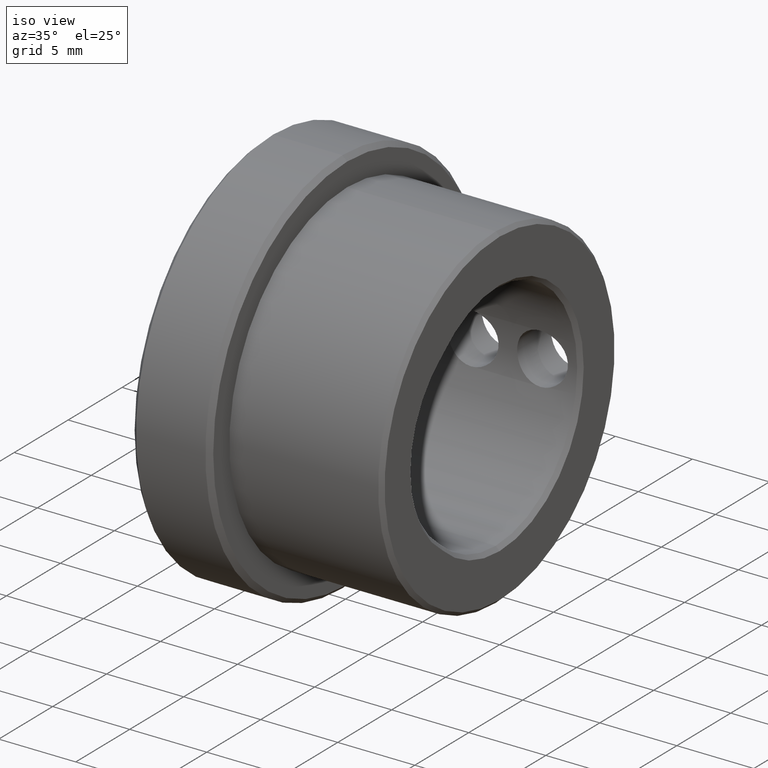
[diagram: clean part render]
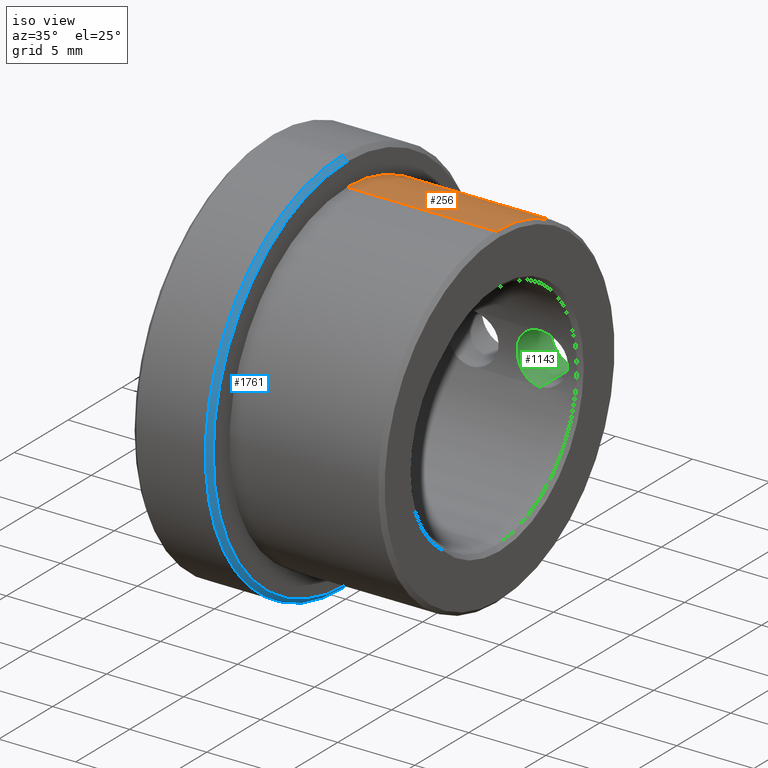
[diagram: same view with three faces highlighted in distinct colors, each labeled with its STEP entity id]
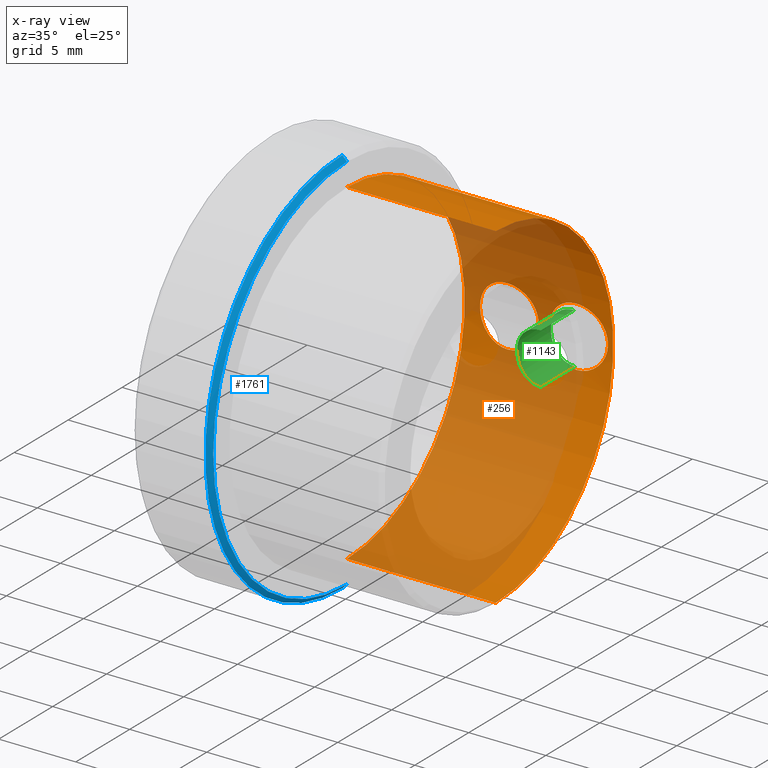
[diagram: x-ray of the same camera — body ghosted, the three highlighted faces saturated]
A machine part, iso view with three faces highlighted in distinct colors.
The next image is the same camera in x-ray (body ghosted, the three faces saturated) — at least one of them is partly hidden behind the body in this view.
Their STEP definitions:

[orange] entity #256 — the highlighted cylindrical surface (partial cylindrical patch) has radius 10.9 mm, axis along (1, -0, -0).
#38 = CARTESIAN_POINT ( 'NONE',  ( 13.93448111680275800, 10.82466434952320400, -1.282526396162563000 ) ) ;
#49 = EDGE_LOOP ( 'NONE', ( #332, #2009 ) ) ;
#52 = CARTESIAN_POINT ( 'NONE',  ( 14.30598066297754800, 10.88266823317304400, -0.6255724871592224200 ) ) ;
#76 = CARTESIAN_POINT ( 'NONE',  ( 13.45393359520261500, 10.76918334947350300, 1.685153254931426300 ) ) ;
#84 = B_SPLINE_CURVE_WITH_KNOTS ( 'NONE', 3,
 ( #572, #2705, #858, #4007, #2421, #3373, #2115, #2448, #3387, #2747, #545, #3995, #1835, #887, #3038, #1821, #3679, #1184, #4022, #1503, #3068, #589, #1199, #1518, #4038, #2144, #2761, #899, #1215, #1531 ),
 .UNSPECIFIED., .F., .F.,
 ( 4, 2, 2, 2, 2, 2, 2, 2, 2, 2, 2, 2, 2, 2, 4 ),
 ( 0.0000000000000000000, 0.03125000000000002100, 0.06250000000000004200, 0.09375000000000005600, 0.1250000000000000800, 0.1875000000000001100, 0.2187500000000001400, 0.2500000000000001700, 0.2812500000000001700, 0.3125000000000002200, 0.3750000000000001100, 0.4062500000000001100, 0.4375000000000000600, 0.4687500000000000600, 0.5000000000000000000 ),
 .UNSPECIFIED. ) ;
#95 = DIRECTION ( 'NONE',  ( -1.000000000000000000, -0.0000000000000000000, -0.0000000000000000000 ) ) ;
#115 = CARTESIAN_POINT ( 'NONE',  ( 6.193772596453445800, 10.88271048660169200, -0.6249947740214681900 ) ) ;
#127 = CARTESIAN_POINT ( 'NONE',  ( 7.044712123766864000, 10.76930558898333200, -1.684385955725953500 ) ) ;
#140 = EDGE_CURVE ( 'NONE', #485, #638, #1802, .T. ) ;
#141 = CARTESIAN_POINT ( 'NONE',  ( 14.74999999999999300, 0.0000000000000000000, -10.90000000000000000 ) ) ;
#157 = CARTESIAN_POINT ( 'NONE',  ( 8.000101108571696400, 10.72561353453819400, -1.941961458868615200 ) ) ;
#232 = CARTESIAN_POINT ( 'NONE',  ( 9.651400526757187800, 10.85695364114914900, -0.9735368024735693300 ) ) ;
#256 = ADVANCED_FACE ( 'NONE', ( #3972, #3865, #422 ), #321, .T. ) ;
#259 = CARTESIAN_POINT ( 'NONE',  ( 9.710844435426862400, 10.86665203325169000, -0.8600479046255241600 ) ) ;
#321 = CYLINDRICAL_SURFACE ( 'NONE', #906, 10.90000000000000000 ) ;
#332 = ORIENTED_EDGE ( 'NONE', *, *, #3018, .T. ) ;
#346 = CARTESIAN_POINT ( 'NONE',  ( 14.21012213869053300, 10.86653236899807800, 0.8615281603568127900 ) ) ;
#365 = CARTESIAN_POINT ( 'NONE',  ( 12.49999999999999600, 10.72561353404198700, 1.941961461609211100 ) ) ;
#371 = AXIS2_PLACEMENT_3D ( 'NONE', #3557, #95, #2288 ) ;
#387 = CARTESIAN_POINT ( 'NONE',  ( 12.75179249581034400, 10.72797197581001200, -1.929055660034202100 ) ) ;
#422 = FACE_OUTER_BOUND ( 'NONE', #2964, .T. ) ;
#426 = CARTESIAN_POINT ( 'NONE',  ( 6.477948714943781100, 10.83601141925078400, -1.193185982978607300 ) ) ;
#443 = CARTESIAN_POINT ( 'NONE',  ( 7.503600150272564700, 10.73683541246526100, -1.879099785914801800 ) ) ;
#483 = CARTESIAN_POINT ( 'NONE',  ( 6.741544462586246800, 10.80184864489955200, 1.462249360658535200 ) ) ;
#485 = VERTEX_POINT ( 'NONE', #673 ) ;
#541 = CARTESIAN_POINT ( 'NONE',  ( 8.000101108571696400, 10.72561353453819400, -1.941961458868615200 ) ) ;
#545 = CARTESIAN_POINT ( 'NONE',  ( 10.83744355992933500, 10.85852818580780600, 0.9784995351024758900 ) ) ;
#553 = CARTESIAN_POINT ( 'NONE',  ( 9.852916843954709200, 10.89056611982990900, 0.5104856315000946300 ) ) ;
#569 = CARTESIAN_POINT ( 'NONE',  ( 8.497691144589667900, 10.73503655981844900, 1.891795413220366500 ) ) ;
#572 = CARTESIAN_POINT ( 'NONE',  ( 12.49999999999999600, 10.72561353404198700, 1.941961461609211100 ) ) ;
#585 = CARTESIAN_POINT ( 'NONE',  ( 9.805980663011178300, 10.88266823317870500, -0.6255724870763034200 ) ) ;
#589 = CARTESIAN_POINT ( 'NONE',  ( 11.24211233671282500, 10.80177435215223400, -1.462832838095498500 ) ) ;
#638 = VERTEX_POINT ( 'NONE', #141 ) ;
#667 = CARTESIAN_POINT ( 'NONE',  ( 12.62502061953159900, 10.72560827961190500, -1.941990482260556000 ) ) ;
#673 = CARTESIAN_POINT ( 'NONE',  ( 5.100000000000000500, 0.0000000000000000000, -10.90000000000000000 ) ) ;
#689 = CARTESIAN_POINT ( 'NONE',  ( 7.155649832996753700, 10.75952842691558700, 1.744985260208162600 ) ) ;
#696 = CARTESIAN_POINT ( 'NONE',  ( 14.15140052672097900, 10.85695364114228700, -0.9735368025425276100 ) ) ;
#739 = CARTESIAN_POINT ( 'NONE',  ( 12.50010110857169300, 10.72561353453819400, -1.941961458868615200 ) ) ;
#783 = ORIENTED_EDGE ( 'NONE', *, *, #140, .F. ) ;
#784 = DIRECTION ( 'NONE',  ( 1.000000000000000000, -0.0000000000000000000, -0.0000000000000000000 ) ) ;
#791 = CARTESIAN_POINT ( 'NONE',  ( 7.385491295857088200, 10.74329118066961400, -1.842314230194242100 ) ) ;
#800 = AXIS2_PLACEMENT_3D ( 'NONE', #1341, #1652, #3246 ) ;
#855 = CARTESIAN_POINT ( 'NONE',  ( 9.170082780656542800, 10.79038935564738100, -1.552554830066023500 ) ) ;
#858 = CARTESIAN_POINT ( 'NONE',  ( 12.25036045416437200, 10.72791660603273600, 1.929362488933973300 ) ) ;
#887 = CARTESIAN_POINT ( 'NONE',  ( 10.60917457193539800, 10.89774060948130000, 0.2546511052142029800 ) ) ;
#896 = CARTESIAN_POINT ( 'NONE',  ( 9.512341993594452200, 10.83583649952344500, 1.185700583548599000 ) ) ;
#899 = CARTESIAN_POINT ( 'NONE',  ( 12.24959441490201700, 10.72792283424600200, -1.929332097451470100 ) ) ;
#906 = AXIS2_PLACEMENT_3D ( 'NONE', #2511, #1572, #2522 ) ;
#921 = VERTEX_POINT ( 'NONE', #739 ) ;
#959 = CIRCLE ( 'NONE', #800, 10.90000000000000000 ) ;
#968 = VECTOR ( 'NONE', #1892, 1000.000000000000000 ) ;
#996 = CARTESIAN_POINT ( 'NONE',  ( 13.34532259357969900, 10.75959592823431200, 1.744583164441473500 ) ) ;
#1056 = CARTESIAN_POINT ( 'NONE',  ( 6.109174571935401600, 10.89774060948130000, 0.2546511052142029800 ) ) ;
#1068 = CARTESIAN_POINT ( 'NONE',  ( 6.337529075654760600, 10.85850691301961900, -0.9792096970943654500 ) ) ;
#1181 = CARTESIAN_POINT ( 'NONE',  ( 9.710122138650529400, 10.86653236899285200, 0.8615281604331764800 ) ) ;
#1184 = CARTESIAN_POINT ( 'NONE',  ( 10.65784218192463600, 10.88905812384126300, -0.5038760871649956600 ) ) ;
#1195 = CARTESIAN_POINT ( 'NONE',  ( 8.125020619531612800, 10.72560827961190500, -1.941990482260556300 ) ) ;
#1199 = CARTESIAN_POINT ( 'NONE',  ( 11.33794830668963100, 10.79044939035353000, -1.543146419163497200 ) ) ;
#1212 = CARTESIAN_POINT ( 'NONE',  ( 8.251792495810347500, 10.72797197581001200, -1.929055660034202100 ) ) ;
#1215 = CARTESIAN_POINT ( 'NONE',  ( 12.37518159761178700, 10.72561878946448400, -1.941932435476674300 ) ) ;
#1301 = CIRCLE ( 'NONE', #371, 10.90000000000000000 ) ;
#1314 = CARTESIAN_POINT ( 'NONE',  ( 13.67008278079414300, 10.79038935566830100, -1.552554829901219500 ) ) ;
#1341 = CARTESIAN_POINT ( 'NONE',  ( 14.74999999999999300, 0.0000000000000000000, 0.0000000000000000000 ) ) ;
#1351 = CARTESIAN_POINT ( 'NONE',  ( 8.000000000000000000, 10.72561353404198700, 1.941961461609210900 ) ) ;
#1405 = CARTESIAN_POINT ( 'NONE',  ( 6.837948306725575500, 10.79044939034985300, -1.543146419188051300 ) ) ;
#1485 = CARTESIAN_POINT ( 'NONE',  ( 8.960914588630442900, 10.76776294763853800, -1.695625680491220400 ) ) ;
#1500 = CARTESIAN_POINT ( 'NONE',  ( 9.160189116540692600, 10.79024293599155900, 1.544574015535566900 ) ) ;
#1503 = CARTESIAN_POINT ( 'NONE',  ( 10.83752907551337000, 10.85850691304040600, -0.9792096967901310300 ) ) ;
#1518 = CARTESIAN_POINT ( 'NONE',  ( 11.54471212380279800, 10.76930558897965200, -1.684385955750501900 ) ) ;
#1528 = CARTESIAN_POINT ( 'NONE',  ( 8.953933595202620700, 10.76918334947350300, 1.685153254931426300 ) ) ;
#1531 = CARTESIAN_POINT ( 'NONE',  ( 12.50010110857169300, 10.72561353453819400, -1.941961458868615200 ) ) ;
#1572 = DIRECTION ( 'NONE',  ( 1.000000000000000000, -0.0000000000000000000, -0.0000000000000000000 ) ) ;
#1600 = CARTESIAN_POINT ( 'NONE',  ( 12.99539842339425600, 10.73680023908561900, -1.879297496205946100 ) ) ;
#1614 = CARTESIAN_POINT ( 'NONE',  ( 14.40320218541351100, 10.90001193329718600, -0.1257787172661864500 ) ) ;
#1652 = DIRECTION ( 'NONE',  ( -1.000000000000000000, 0.0000000000000000000, 0.0000000000000000000 ) ) ;
#1659 = ORIENTED_EDGE ( 'NONE', *, *, #2185, .T. ) ;
#1676 = CARTESIAN_POINT ( 'NONE',  ( 6.838704798634724500, 10.79035844170986100, 1.543792428521620000 ) ) ;
#1703 = CARTESIAN_POINT ( 'NONE',  ( 6.194580956912480100, 10.88257097720220700, 0.6272342877117482700 ) ) ;
#1802 = LINE ( 'NONE', #3136, #968 ) ;
#1821 = CARTESIAN_POINT ( 'NONE',  ( 10.59679411175982400, 10.90001145644080800, -0.1265740717707455900 ) ) ;
#1835 = CARTESIAN_POINT ( 'NONE',  ( 10.65791933757679100, 10.88904490952195700, 0.5042802150974790000 ) ) ;
#1858 = EDGE_LOOP ( 'NONE', ( #2151, #1659 ) ) ;
#1865 = ORIENTED_EDGE ( 'NONE', *, *, #2602, .T. ) ;
#1892 = DIRECTION ( 'NONE',  ( 1.000000000000000000, -0.0000000000000000000, -0.0000000000000000000 ) ) ;
#1913 = CARTESIAN_POINT ( 'NONE',  ( 14.34197298697552500, 10.88902618908470300, -0.5048100946018927400 ) ) ;
#1920 = B_SPLINE_CURVE_WITH_KNOTS ( 'NONE', 3,
 ( #4003, #1195, #1212, #4034, #2124, #1485, #855, #3384, #2141, #232, #259, #585, #2744, #3050, #2731, #2096, #553, #1181, #2758, #896, #3369, #3398, #1500, #1528, #3689, #569, #3719, #3342 ),
 .UNSPECIFIED., .F., .F.,
 ( 4, 2, 2, 2, 2, 2, 2, 2, 2, 2, 2, 2, 2, 4 ),
 ( 0.5000000000000000000, 0.5312500000000000000, 0.5625000000000000000, 0.6250000000000000000, 0.6562500000000000000, 0.6875000000000000000, 0.7187500000000000000, 0.7500000000000000000, 0.8124999999999998900, 0.8437499999999997800, 0.8749999999999997800, 0.9062499999999997800, 0.9374999999999997800, 1.000000000000000000 ),
 .UNSPECIFIED. ) ;
#1974 = CARTESIAN_POINT ( 'NONE',  ( 7.506253977036834600, 10.73671803567281400, 1.879765980689221500 ) ) ;
#1990 = CARTESIAN_POINT ( 'NONE',  ( 6.742112336729970700, 10.80177435215001000, -1.462832838112997100 ) ) ;
#2009 = ORIENTED_EDGE ( 'NONE', *, *, #2400, .T. ) ;
#2014 = CARTESIAN_POINT ( 'NONE',  ( -36.28023472911937800, 1.334865011070615000E-015, 10.90000000000000000 ) ) ;
#2019 = CARTESIAN_POINT ( 'NONE',  ( 7.749594414902022200, 10.72792283424599800, -1.929332097451469600 ) ) ;
#2096 = CARTESIAN_POINT ( 'NONE',  ( 9.903014588702276900, 10.89997598743169000, 0.2546472072838175700 ) ) ;
#2115 = CARTESIAN_POINT ( 'NONE',  ( 11.54648347481930800, 10.76913820465360800, 1.685465126310825100 ) ) ;
#2124 = CARTESIAN_POINT ( 'NONE',  ( 8.613915280436183200, 10.74324717565823700, -1.842581466022870500 ) ) ;
#2141 = CARTESIAN_POINT ( 'NONE',  ( 9.513369326800525300, 10.83598750249444000, -1.184310397495733200 ) ) ;
#2144 = CARTESIAN_POINT ( 'NONE',  ( 11.88549129586587800, 10.74329118066962100, -1.842314230194194800 ) ) ;
#2146 = VERTEX_POINT ( 'NONE', #541 ) ;
#2151 = ORIENTED_EDGE ( 'NONE', *, *, #2833, .T. ) ;
#2185 = EDGE_CURVE ( 'NONE', #2146, #3666, #1920, .T. ) ;
#2217 = CARTESIAN_POINT ( 'NONE',  ( 14.35291684387469300, 10.89056611981945400, 0.5104856316528213500 ) ) ;
#2230 = CARTESIAN_POINT ( 'NONE',  ( 14.21084443546050300, 10.86665203325734900, -0.8600479045426106000 ) ) ;
#2244 = CARTESIAN_POINT ( 'NONE',  ( 13.75763208653428100, 10.80174303721701500, 1.463062796948517500 ) ) ;
#2260 = CARTESIAN_POINT ( 'NONE',  ( 14.39092420885876100, 10.89775774311846100, -0.2541667769125990400 ) ) ;
#2266 = B_SPLINE_CURVE_WITH_KNOTS ( 'NONE', 3,
 ( #2582, #667, #387, #1600, #3458, #3781, #1314, #38, #2859, #696, #2230, #52, #1913, #2260, #1614, #3515, #2217, #346, #3155, #2545, #3142, #2244, #2834, #76, #996, #2569, #3182, #2844 ),
 .UNSPECIFIED., .F., .F.,
 ( 4, 2, 2, 2, 2, 2, 2, 2, 2, 2, 2, 2, 2, 4 ),
 ( 0.5000000000000000000, 0.5312500000000000000, 0.5625000000000001100, 0.6250000000000002200, 0.6562500000000002200, 0.6875000000000002200, 0.7187500000000003300, 0.7500000000000003300, 0.8125000000000004400, 0.8437500000000003300, 0.8750000000000002200, 0.9062500000000002200, 0.9375000000000001100, 1.000000000000000000 ),
 .UNSPECIFIED. ) ;
#2288 = DIRECTION ( 'NONE',  ( 0.0000000000000000000, 0.0000000000000000000, -1.000000000000000000 ) ) ;
#2312 = CARTESIAN_POINT ( 'NONE',  ( 6.479011411970811100, 10.83587230144245000, 1.194278370854390700 ) ) ;
#2323 = CARTESIAN_POINT ( 'NONE',  ( 6.337443559879814000, 10.85852818581914800, 0.9784995349367351400 ) ) ;
#2350 = CARTESIAN_POINT ( 'NONE',  ( 6.109281222511431700, 10.89772213330346600, -0.2552062712710263000 ) ) ;
#2400 = EDGE_CURVE ( 'NONE', #921, #2781, #2266, .T. ) ;
#2421 = CARTESIAN_POINT ( 'NONE',  ( 11.88503277407640700, 10.74332065112389500, 1.842141936736017400 ) ) ;
#2448 = CARTESIAN_POINT ( 'NONE',  ( 11.33870479863472400, 10.79035844170986100, 1.543792428521620500 ) ) ;
#2475 = EDGE_CURVE ( 'NONE', #3123, #485, #1301, .T. ) ;
#2511 = CARTESIAN_POINT ( 'NONE',  ( -36.28023472911937800, 0.0000000000000000000, 0.0000000000000000000 ) ) ;
#2522 = DIRECTION ( 'NONE',  ( 0.0000000000000000000, 0.0000000000000000000, -1.000000000000000000 ) ) ;
#2545 = CARTESIAN_POINT ( 'NONE',  ( 14.01234199360547300, 10.83583649952481300, 1.185700583534885500 ) ) ;
#2569 = CARTESIAN_POINT ( 'NONE',  ( 12.99769114463844000, 10.73503655982189300, 1.891795413199714100 ) ) ;
#2582 = CARTESIAN_POINT ( 'NONE',  ( 12.50010110857169300, 10.72561353453819400, -1.941961458868615200 ) ) ;
#2602 = EDGE_CURVE ( 'NONE', #3123, #3522, #2806, .T. ) ;
#2642 = CARTESIAN_POINT ( 'NONE',  ( 7.155930538377936600, 10.75950567435205200, -1.745126000899553300 ) ) ;
#2653 = CARTESIAN_POINT ( 'NONE',  ( 14.74999999999999300, 1.334865011070615000E-015, 10.90000000000000000 ) ) ;
#2672 = EDGE_CURVE ( 'NONE', #3522, #638, #959, .T. ) ;
#2705 = CARTESIAN_POINT ( 'NONE',  ( 12.37477430035711900, 10.72562006695878300, 1.941925379770204300 ) ) ;
#2731 = CARTESIAN_POINT ( 'NONE',  ( 9.903202185404502700, 10.90001193329717400, -0.1257787170807642400 ) ) ;
#2744 = CARTESIAN_POINT ( 'NONE',  ( 9.841972986975529000, 10.88902618908470300, -0.5048100946018904100 ) ) ;
#2747 = CARTESIAN_POINT ( 'NONE',  ( 10.97901141197072400, 10.83587230144246200, 1.194278370854282800 ) ) ;
#2758 = CARTESIAN_POINT ( 'NONE',  ( 9.650740870520355200, 10.85684845384884600, 0.9747205591306006300 ) ) ;
#2761 = CARTESIAN_POINT ( 'NONE',  ( 12.00360015027256100, 10.73683541246526300, -1.879099785914801800 ) ) ;
#2781 = VERTEX_POINT ( 'NONE', #365 ) ;
#2798 = B_SPLINE_CURVE_WITH_KNOTS ( 'NONE', 3,
 ( #1351, #2852, #3534, #1974, #3175, #689, #3189, #1676, #483, #2312, #2323, #1703, #2963, #1056, #3590, #3874, #2350, #3548, #115, #1068, #426, #1990, #1405, #127, #2642, #791, #443, #2019, #3563, #157 ),
 .UNSPECIFIED., .F., .F.,
 ( 4, 2, 2, 2, 2, 2, 2, 2, 2, 2, 2, 2, 2, 2, 4 ),
 ( 0.0000000000000000000, 0.03124999999999995800, 0.06249999999999991700, 0.09374999999999987500, 0.1249999999999998300, 0.1874999999999997500, 0.2187499999999997200, 0.2499999999999996700, 0.2812499999999996100, 0.3124999999999995600, 0.3749999999999996700, 0.4062499999999997200, 0.4374999999999997800, 0.4687499999999998900, 0.5000000000000000000 ),
 .UNSPECIFIED. ) ;
#2806 = LINE ( 'NONE', #2014, #3798 ) ;
#2833 = EDGE_CURVE ( 'NONE', #3666, #2146, #2798, .T. ) ;
#2834 = CARTESIAN_POINT ( 'NONE',  ( 13.66018911654068700, 10.79024293599155700, 1.544574015535566700 ) ) ;
#2844 = CARTESIAN_POINT ( 'NONE',  ( 12.49999999999999600, 10.72561353404198700, 1.941961461609211100 ) ) ;
#2852 = CARTESIAN_POINT ( 'NONE',  ( 7.874774300357123600, 10.72562006695878300, 1.941925379770203900 ) ) ;
#2859 = CARTESIAN_POINT ( 'NONE',  ( 14.01336932683672000, 10.83598750250129900, -1.184310397426783900 ) ) ;
#2886 = CARTESIAN_POINT ( 'NONE',  ( 5.100000000000000500, 1.334865011070615000E-015, 10.90000000000000000 ) ) ;
#2963 = CARTESIAN_POINT ( 'NONE',  ( 6.157919337576792900, 10.88904490952195700, 0.5042802150974788900 ) ) ;
#2964 = EDGE_LOOP ( 'NONE', ( #3216, #1865, #3468, #783 ) ) ;
#3018 = EDGE_CURVE ( 'NONE', #2781, #921, #84, .T. ) ;
#3038 = CARTESIAN_POINT ( 'NONE',  ( 10.59692653399730000, 10.89998845495159500, 0.1285395974300352400 ) ) ;
#3050 = CARTESIAN_POINT ( 'NONE',  ( 9.890924208858766800, 10.89775774311846000, -0.2541667769125966500 ) ) ;
#3068 = CARTESIAN_POINT ( 'NONE',  ( 10.97794871497806200, 10.83601141924633800, -1.193185983013604900 ) ) ;
#3123 = VERTEX_POINT ( 'NONE', #2886 ) ;
#3136 = CARTESIAN_POINT ( 'NONE',  ( -36.28023472911937800, 0.0000000000000000000, -10.90000000000000000 ) ) ;
#3142 = CARTESIAN_POINT ( 'NONE',  ( 13.93376168899850100, 10.82456679715631000, 1.283339021374435300 ) ) ;
#3155 = CARTESIAN_POINT ( 'NONE',  ( 14.15074087050933500, 10.85684845384748000, 0.9747205591443097700 ) ) ;
#3175 = CARTESIAN_POINT ( 'NONE',  ( 7.385032774107294500, 10.74332065112108500, 1.842141936752865300 ) ) ;
#3182 = CARTESIAN_POINT ( 'NONE',  ( 12.74979554985913300, 10.72560050242349000, 1.942033436314404900 ) ) ;
#3189 = CARTESIAN_POINT ( 'NONE',  ( 7.046483474819305000, 10.76913820465360800, 1.685465126310825100 ) ) ;
#3216 = ORIENTED_EDGE ( 'NONE', *, *, #2475, .F. ) ;
#3246 = DIRECTION ( 'NONE',  ( 0.0000000000000000000, 0.0000000000000000000, -1.000000000000000000 ) ) ;
#3342 = CARTESIAN_POINT ( 'NONE',  ( 8.000000000000000000, 10.72561353404198700, 1.941961461609210900 ) ) ;
#3369 = CARTESIAN_POINT ( 'NONE',  ( 9.433761688998501400, 10.82456679715631000, 1.283339021374435300 ) ) ;
#3373 = CARTESIAN_POINT ( 'NONE',  ( 11.65564983302765100, 10.75952842691277700, 1.744985260225010900 ) ) ;
#3384 = CARTESIAN_POINT ( 'NONE',  ( 9.434481116871570100, 10.82466434953366300, -1.282526396080157600 ) ) ;
#3387 = CARTESIAN_POINT ( 'NONE',  ( 11.24154446258629700, 10.80184864489954500, 1.462249360658589600 ) ) ;
#3398 = CARTESIAN_POINT ( 'NONE',  ( 9.257632086534286500, 10.80174303721701700, 1.463062796948517700 ) ) ;
#3458 = CARTESIAN_POINT ( 'NONE',  ( 13.11391528044200600, 10.74324717565876800, -1.842581466019692900 ) ) ;
#3468 = ORIENTED_EDGE ( 'NONE', *, *, #2672, .T. ) ;
#3515 = CARTESIAN_POINT ( 'NONE',  ( 14.40301458868424500, 10.89997598743165100, 0.2546472076546550900 ) ) ;
#3522 = VERTEX_POINT ( 'NONE', #2653 ) ;
#3534 = CARTESIAN_POINT ( 'NONE',  ( 7.750360454164381400, 10.72791660603273700, 1.929362488933973600 ) ) ;
#3548 = CARTESIAN_POINT ( 'NONE',  ( 6.157842181898661100, 10.88905812384430800, -0.5038760870775428300 ) ) ;
#3557 = CARTESIAN_POINT ( 'NONE',  ( 5.100000000000000500, 0.0000000000000000000, 0.0000000000000000000 ) ) ;
#3563 = CARTESIAN_POINT ( 'NONE',  ( 7.875181597611778300, 10.72561878946448000, -1.941932435476674300 ) ) ;
#3590 = CARTESIAN_POINT ( 'NONE',  ( 6.096926533997295100, 10.89998845495159500, 0.1285395974299472500 ) ) ;
#3666 = VERTEX_POINT ( 'NONE', #3950 ) ;
#3679 = CARTESIAN_POINT ( 'NONE',  ( 10.60928122248545000, 10.89772213330651400, -0.2552062711835692600 ) ) ;
#3689 = CARTESIAN_POINT ( 'NONE',  ( 8.845322593604086200, 10.75959592823603300, 1.744583164431147800 ) ) ;
#3719 = CARTESIAN_POINT ( 'NONE',  ( 8.249795549859065600, 10.72560050242349500, 1.942033436314406300 ) ) ;
#3781 = CARTESIAN_POINT ( 'NONE',  ( 13.46091458861878100, 10.76776294763747700, -1.695625680497582400 ) ) ;
#3798 = VECTOR ( 'NONE', #784, 1000.000000000000000 ) ;
#3865 = FACE_BOUND ( 'NONE', #1858, .T. ) ;
#3874 = CARTESIAN_POINT ( 'NONE',  ( 6.096794111759823700, 10.90001145644081000, -0.1265740717706530000 ) ) ;
#3950 = CARTESIAN_POINT ( 'NONE',  ( 8.000000000000000000, 10.72561353404198700, 1.941961461609210900 ) ) ;
#3972 = FACE_BOUND ( 'NONE', #49, .T. ) ;
#3995 = CARTESIAN_POINT ( 'NONE',  ( 10.69458095688772300, 10.88257097720788000, 0.6272342876288774500 ) ) ;
#4003 = CARTESIAN_POINT ( 'NONE',  ( 8.000101108571696400, 10.72561353453819400, -1.941961458868615200 ) ) ;
#4007 = CARTESIAN_POINT ( 'NONE',  ( 12.00625397703683500, 10.73671803567281600, 1.879765980689222000 ) ) ;
#4022 = CARTESIAN_POINT ( 'NONE',  ( 10.69377259652413800, 10.88271048659130200, -0.6249947741735847300 ) ) ;
#4034 = CARTESIAN_POINT ( 'NONE',  ( 8.495398423394265200, 10.73680023908562500, -1.879297496205946300 ) ) ;
#4038 = CARTESIAN_POINT ( 'NONE',  ( 11.65593053836915000, 10.75950567435204700, -1.745126000899601900 ) ) ;

[blue] entity #1761 — the highlighted conical surface has half-angle 45 deg.
#56 = DIRECTION ( 'NONE',  ( 1.000000000000000000, 0.0000000000000000000, 0.0000000000000000000 ) ) ;
#87 = ORIENTED_EDGE ( 'NONE', *, *, #3738, .T. ) ;
#199 = CARTESIAN_POINT ( 'NONE',  ( 5.099999999999999600, 0.0000000000000000000, 12.40000000000000400 ) ) ;
#507 = EDGE_CURVE ( 'NONE', #2049, #2345, #2810, .T. ) ;
#803 = CARTESIAN_POINT ( 'NONE',  ( 4.800000000000002500, 0.0000000000000000000, 0.0000000000000000000 ) ) ;
#826 = EDGE_CURVE ( 'NONE', #2345, #2349, #3756, .T. ) ;
#827 = CARTESIAN_POINT ( 'NONE',  ( 5.100000000000000500, 1.518562030942718400E-015, -12.40000000000000400 ) ) ;
#842 = DIRECTION ( 'NONE',  ( -0.7071067811865495700, 0.0000000000000000000, 0.7071067811865455700 ) ) ;
#911 = CONICAL_SURFACE ( 'NONE', #1566, 12.40000000000000400, 0.7853981633974456100 ) ;
#935 = VERTEX_POINT ( 'NONE', #3635 ) ;
#1043 = CARTESIAN_POINT ( 'NONE',  ( 5.100000000000000500, 0.0000000000000000000, 0.0000000000000000000 ) ) ;
#1190 = EDGE_CURVE ( 'NONE', #2349, #935, #3006, .T. ) ;
#1349 = LINE ( 'NONE', #2981, #2280 ) ;
#1566 = AXIS2_PLACEMENT_3D ( 'NONE', #1043, #3271, #3936 ) ;
#1714 = ORIENTED_EDGE ( 'NONE', *, *, #507, .F. ) ;
#1719 = DIRECTION ( 'NONE',  ( 0.0000000000000000000, 0.0000000000000000000, -1.000000000000000000 ) ) ;
#1761 = ADVANCED_FACE ( 'NONE', ( #2478 ), #911, .T. ) ;
#1816 = DIRECTION ( 'NONE',  ( -0.7071067811865495700, 8.659560562354909400E-017, -0.7071067811865455700 ) ) ;
#1890 = VECTOR ( 'NONE', #1816, 1000.000000000000100 ) ;
#1894 = ORIENTED_EDGE ( 'NONE', *, *, #1190, .F. ) ;
#1928 = CARTESIAN_POINT ( 'NONE',  ( 5.099999999999999600, 1.536931732929928400E-015, -12.40000000000000400 ) ) ;
#1955 = CARTESIAN_POINT ( 'NONE',  ( 4.800000000000002500, 1.555301434917138400E-015, -12.69999999999999900 ) ) ;
#1962 = DIRECTION ( 'NONE',  ( 0.0000000000000000000, 0.0000000000000000000, -1.000000000000000000 ) ) ;
#2004 = ORIENTED_EDGE ( 'NONE', *, *, #826, .F. ) ;
#2049 = VERTEX_POINT ( 'NONE', #199 ) ;
#2063 = AXIS2_PLACEMENT_3D ( 'NONE', #803, #3026, #1719 ) ;
#2280 = VECTOR ( 'NONE', #842, 1000.000000000000100 ) ;
#2345 = VERTEX_POINT ( 'NONE', #1928 ) ;
#2349 = VERTEX_POINT ( 'NONE', #1955 ) ;
#2478 = FACE_OUTER_BOUND ( 'NONE', #3070, .T. ) ;
#2590 = CARTESIAN_POINT ( 'NONE',  ( 5.099999999999999600, 0.0000000000000000000, 0.0000000000000000000 ) ) ;
#2810 = CIRCLE ( 'NONE', #4070, 12.40000000000000400 ) ;
#2981 = CARTESIAN_POINT ( 'NONE',  ( 5.100000000000000500, 0.0000000000000000000, 12.40000000000000400 ) ) ;
#3006 = CIRCLE ( 'NONE', #2063, 12.69999999999999900 ) ;
#3026 = DIRECTION ( 'NONE',  ( -1.000000000000000000, 0.0000000000000000000, 0.0000000000000000000 ) ) ;
#3070 = EDGE_LOOP ( 'NONE', ( #2004, #1714, #87, #1894 ) ) ;
#3271 = DIRECTION ( 'NONE',  ( -1.000000000000000000, 0.0000000000000000000, 0.0000000000000000000 ) ) ;
#3635 = CARTESIAN_POINT ( 'NONE',  ( 4.800000000000002500, 0.0000000000000000000, 12.69999999999999900 ) ) ;
#3738 = EDGE_CURVE ( 'NONE', #2049, #935, #1349, .T. ) ;
#3756 = LINE ( 'NONE', #827, #1890 ) ;
#3936 = DIRECTION ( 'NONE',  ( 0.0000000000000000000, 0.0000000000000000000, 1.000000000000000000 ) ) ;
#4070 = AXIS2_PLACEMENT_3D ( 'NONE', #2590, #56, #1962 ) ;

[green] entity #1143 — the highlighted cylindrical surface (edge-blend (fillet) strip) has radius 1.65 mm, axis along (-0, 1, -0).
#21 = CARTESIAN_POINT ( 'NONE',  ( 11.77023163480079000, 10.54483857506244800, -1.479908716548356400 ) ) ;
#33 = CARTESIAN_POINT ( 'NONE',  ( 11.58704323317240500, 10.56381202856992200, -1.374425490307099200 ) ) ;
#48 = CARTESIAN_POINT ( 'NONE',  ( 11.16412201635084900, 10.62352710810087700, -0.9685609291798427100 ) ) ;
#72 = CARTESIAN_POINT ( 'NONE',  ( 11.97146448605996300, 10.52882664096324900, -1.563300351270990900 ) ) ;
#78 = FACE_OUTER_BOUND ( 'NONE', #1365, .T. ) ;
#89 = CARTESIAN_POINT ( 'NONE',  ( 11.23681912163993200, 10.61168697103268800, 1.061706327356664500 ) ) ;
#103 = CARTESIAN_POINT ( 'NONE',  ( 11.11297779817430800, 10.63224766810830100, 0.8937111035530573800 ) ) ;
#114 = CARTESIAN_POINT ( 'NONE',  ( 11.67222748381330200, 7.413318146423143200, -1.431410878810329000 ) ) ;
#117 = CARTESIAN_POINT ( 'NONE',  ( 11.05733391858074000, 10.64209231824611600, -0.8008652195843621900 ) ) ;
#130 = CARTESIAN_POINT ( 'NONE',  ( 11.38243626908430500, 10.58992343301095600, 1.214198376902997600 ) ) ;
#144 = CARTESIAN_POINT ( 'NONE',  ( 10.86035054119211900, 10.67995173893578100, -0.2147307508206558700 ) ) ;
#150 = VERTEX_POINT ( 'NONE', #613 ) ;
#156 = CARTESIAN_POINT ( 'NONE',  ( 10.84995346425963400, 7.550010170061572300, 0.1081851496566004600 ) ) ;
#159 = CARTESIAN_POINT ( 'NONE',  ( 12.07548202011074400, 10.52256237096651000, 1.594673949430862800 ) ) ;
#187 = VERTEX_POINT ( 'NONE', #2838 ) ;
#223 = CARTESIAN_POINT ( 'NONE',  ( 12.49999999999999800, 7.367496182557546900, -1.649999999999992600 ) ) ;
#292 = EDGE_CURVE ( 'NONE', #1217, #187, #3208, .T. ) ;
#342 = CARTESIAN_POINT ( 'NONE',  ( 11.42274622139151000, 10.58436370375569000, -1.250100971633868200 ) ) ;
#350 = CARTESIAN_POINT ( 'NONE',  ( 11.49284813091026800, 7.435484751443143900, -1.311407471047682000 ) ) ;
#352 = CARTESIAN_POINT ( 'NONE',  ( 11.14186945334660300, 10.62728191240701200, -0.9370931096220991300 ) ) ;
#372 = CARTESIAN_POINT ( 'NONE',  ( 12.50000000000000000, 7.367496182557546000, 1.649999999999992600 ) ) ;
#399 = CARTESIAN_POINT ( 'NONE',  ( 11.09017321984556800, 10.63621711764569300, -0.8579888170821297100 ) ) ;
#412 = CARTESIAN_POINT ( 'NONE',  ( 11.01945114783134200, 10.64900590112072200, -0.7288426358828441500 ) ) ;
#425 = CARTESIAN_POINT ( 'NONE',  ( 10.90259644673532900, 7.538652208696567500, 0.4271282737250907100 ) ) ;
#429 = CARTESIAN_POINT ( 'NONE',  ( 10.89254218396729400, 10.67346138280365200, -0.3731952563238373800 ) ) ;
#445 = CARTESIAN_POINT ( 'NONE',  ( 11.05703091386304800, 10.64214115735911800, 0.8006173452619028700 ) ) ;
#459 = CARTESIAN_POINT ( 'NONE',  ( 11.12526147524778300, 10.63012556720011000, 0.9124858228754931800 ) ) ;
#471 = CARTESIAN_POINT ( 'NONE',  ( 11.97189489897168200, 10.52867229863555200, 1.564140960033795900 ) ) ;
#482 = CARTESIAN_POINT ( 'NONE',  ( 11.48407202336760400, 7.435706328169265700, 1.317698438870044100 ) ) ;
#497 = CARTESIAN_POINT ( 'NONE',  ( 11.84347457742676800, 10.53843168668935500, 1.513819118749950600 ) ) ;
#514 = CARTESIAN_POINT ( 'NONE',  ( 11.69915102064662600, 10.55170076346011900, 1.442674762783439300 ) ) ;
#525 = VECTOR ( 'NONE', #1282, 1000.000000000000000 ) ;
#562 = EDGE_CURVE ( 'NONE', #1217, #2581, #1028, .T. ) ;
#613 = CARTESIAN_POINT ( 'NONE',  ( 12.49999999999999800, 10.51119895810497000, 1.649999999999992600 ) ) ;
#625 = VECTOR ( 'NONE', #1392, 1000.000000000000000 ) ;
#662 = CARTESIAN_POINT ( 'NONE',  ( 11.47291691213670500, 10.57774313260274600, -1.291391962841806000 ) ) ;
#676 = CARTESIAN_POINT ( 'NONE',  ( 12.39248003752960200, 10.51175127887899800, -1.647388957307876800 ) ) ;
#692 = CARTESIAN_POINT ( 'NONE',  ( 12.28432967009750400, 10.51410076641211900, -1.636072820097908700 ) ) ;
#705 = CARTESIAN_POINT ( 'NONE',  ( 11.59397146310623100, 10.56301790474224900, -1.379007652602950000 ) ) ;
#716 = B_SPLINE_CURVE_WITH_KNOTS ( 'NONE', 3,
 ( #4067, #1633, #676, #2563, #692, #2829, #993, #2526, #3789, #2868, #72, #1016, #3164, #2885, #1909, #21, #1285, #3816, #2540, #3177, #1325, #1337, #705, #33, #2577, #3470, #1585, #1597, #662, #3496, #2224, #2840, #2855, #342, #1951, #1619, #1002, #1936, #983, #3777, #3511, #2270, #1295, #3484, #1924, #3801, #48, #2239, #352, #2551, #2593, #399, #1044, #117, #3257, #2021, #412, #1069, #2617, #3551, #1033, #2300, #2325, #429, #2941, #144, #1992, #3526, #2313, #735, #2283, #3212, #1691, #3240, #3890, #1965, #1976, #3227, #1353, #750, #1367, #3578, #2926, #2895, #721, #445, #2912, #1677, #103, #1664, #459, #1058, #3876, #3536, #2631, #1383, #1084, #3565, #3272, #89, #3860, #762, #2605, #2008, #130, #1394, #1704, #3903, #2340, #2643, #778, #2952, #1647, #3844, #2352, #1774, #1443, #1420, #2652, #2980, #2690, #2408, #514, #1728, #2034, #2664, #1458, #497, #3963, #2073, #471, #813, #159, #3605, #2391, #3979, #841, #1112 ),
 .UNSPECIFIED., .F., .F.,
 ( 4, 2, 2, 2, 2, 2, 2, 1, 2, 2, 1, 1, 2, 2, 2, 1, 1, 2, 2, 2, 2, 2, 1, 1, 2, 2, 2, 2, 2, 1, 2, 2, 2, 2, 2, 2, 2, 2, 2, 2, 2, 2, 1, 2, 2, 1, 2, 2, 1, 1, 2, 2, 2, 1, 1, 2, 2, 2, 2, 2, 2, 1, 2, 2, 2, 2, 2, 2, 2, 2, 1, 2, 2, 2, 2, 2, 4 ),
 ( 0.5000085223909416200, 0.5156332560662190100, 0.5234456229038576500, 0.5312579897414962900, 0.5468827234167736900, 0.5546950902544125500, 0.5625074570920515200, 0.5703198239296904900, 0.5742260073485099300, 0.5781321907673293600, 0.5859445576049681100, 0.5898507410237877600, 0.5918038327331977000, 0.5937569244426077500, 0.6015692912802473900, 0.6054754746990672600, 0.6074285664084772000, 0.6084051122631822800, 0.6093816581178873600, 0.6171940249555291100, 0.6250063917931708600, 0.6328187586308124900, 0.6367249420496333700, 0.6386780337590440800, 0.6396545796137493900, 0.6406311254684546900, 0.6484434923060975500, 0.6523496757249189800, 0.6562558591437405200, 0.6640682259813837100, 0.6679744094002051400, 0.6718805928190266800, 0.6796929596566694300, 0.6875053264943120600, 0.7031300601695975600, 0.7109424270072402000, 0.7187547938448829400, 0.7500042611954536000, 0.7656289948707388800, 0.7734413617083816300, 0.7812537285460243700, 0.7968784622213096500, 0.8046908290589521700, 0.8085970124777733800, 0.8125031958965945900, 0.8203155627342370000, 0.8242217461530582100, 0.8281279295718795300, 0.8359402964095216100, 0.8398464798283424800, 0.8417995715377530900, 0.8437526632471635800, 0.8515650300848061100, 0.8554712135036275400, 0.8574243052130383600, 0.8584008510677434400, 0.8593773969224487400, 0.8671897637600918300, 0.8750021305977349100, 0.8828144974353782100, 0.8867206808541998600, 0.8886737725636106900, 0.8896503184183161000, 0.8906268642730215100, 0.8984392311106626000, 0.9023454145294830300, 0.9062515979483034600, 0.9140639647859445400, 0.9179701482047650800, 0.9218763316235856200, 0.9296886984612269300, 0.9335948818800476900, 0.9375010652988684500, 0.9531257989741510600, 0.9609381658117925900, 0.9687505326494340000, 1.000000000000000000 ),
 .UNSPECIFIED. ) ;
#721 = CARTESIAN_POINT ( 'NONE',  ( 11.03902386696900900, 10.64541558760167700, 0.7669489670011159200 ) ) ;
#735 = CARTESIAN_POINT ( 'NONE',  ( 10.86054960256445400, 10.67993210297938400, 0.1882282720571940600 ) ) ;
#750 = CARTESIAN_POINT ( 'NONE',  ( 10.97107299742134000, 10.65810373120288000, 0.6205230938299312000 ) ) ;
#762 = CARTESIAN_POINT ( 'NONE',  ( 11.28721431199185900, 10.60384609144795600, 1.119093666226900400 ) ) ;
#773 = EDGE_CURVE ( 'NONE', #2581, #150, #817, .T. ) ;
#774 = CARTESIAN_POINT ( 'NONE',  ( 11.96512254134377400, 7.386225137069059700, 1.564594660715583800 ) ) ;
#778 = CARTESIAN_POINT ( 'NONE',  ( 11.44945867340765000, 10.58081051366106500, 1.272347513971193500 ) ) ;
#813 = CARTESIAN_POINT ( 'NONE',  ( 12.04965894263858100, 10.52399114722455800, 1.587584932279679600 ) ) ;
#817 = LINE ( 'NONE', #2322, #625 ) ;
#841 = CARTESIAN_POINT ( 'NONE',  ( 12.39332245182462900, 10.51119895810496800, 1.649999999999992400 ) ) ;
#951 = CARTESIAN_POINT ( 'NONE',  ( 12.49999999999999800, 12.69999999999999900, -1.649999999999992600 ) ) ;
#983 = CARTESIAN_POINT ( 'NONE',  ( 11.25980300408802000, 10.60807826499812000, -1.088390683028132500 ) ) ;
#993 = CARTESIAN_POINT ( 'NONE',  ( 12.20138996670146400, 10.51680033227670600, -1.622958005232804500 ) ) ;
#1002 = CARTESIAN_POINT ( 'NONE',  ( 11.30805810224286600, 10.60068785981964900, -1.141499672478856600 ) ) ;
#1016 = CARTESIAN_POINT ( 'NONE',  ( 11.91961052147350300, 10.53245497623153400, -1.544799608685737200 ) ) ;
#1028 = B_SPLINE_CURVE_WITH_KNOTS ( 'NONE', 3,
 ( #1308, #2295, #1363, #3188, #114, #350, #1618, #3812, #3915, #1727, #2032, #3887, #1433, #156, #3617, #425, #1093, #3947, #3934, #482, #3602, #774, #1379, #3562, #3237, #3899 ),
 .UNSPECIFIED., .F., .F.,
 ( 4, 2, 2, 2, 2, 2, 2, 2, 2, 2, 2, 2, 4 ),
 ( 0.005174276572213010700, 0.005820890057941806300, 0.006144196800806201100, 0.006467503543670596700, 0.006790810286534991500, 0.007114117029399386200, 0.007760730515128176600, 0.008084037257992572300, 0.008407344000856967900, 0.009053957486585759200, 0.009700570972314550400, 0.01002387771517894400, 0.01034718445804334000 ),
 .UNSPECIFIED. ) ;
#1033 = CARTESIAN_POINT ( 'NONE',  ( 10.93565423697058500, 10.66491881872505400, -0.5274709505243703200 ) ) ;
#1044 = CARTESIAN_POINT ( 'NONE',  ( 11.07019024313953000, 10.63978327695428500, -0.8235985560964190800 ) ) ;
#1058 = CARTESIAN_POINT ( 'NONE',  ( 11.14203302899263700, 10.62724690112902300, 0.9375542223466192300 ) ) ;
#1069 = CARTESIAN_POINT ( 'NONE',  ( 10.99628317150066300, 10.65332370912381100, -0.6797589214026404900 ) ) ;
#1084 = CARTESIAN_POINT ( 'NONE',  ( 11.21567633281945400, 10.61507072720065100, 1.035869809281612300 ) ) ;
#1093 = CARTESIAN_POINT ( 'NONE',  ( 10.93453240110041600, 7.531869152661635700, 0.5323896248454487200 ) ) ;
#1112 = CARTESIAN_POINT ( 'NONE',  ( 12.49999999999999800, 10.51119895810497000, 1.649999999999992600 ) ) ;
#1127 = CARTESIAN_POINT ( 'NONE',  ( 12.49999999999999800, 12.69999999999999900, 0.0000000000000000000 ) ) ;
#1143 = ADVANCED_FACE ( 'NONE', ( #78 ), #3160, .F. ) ;
#1217 = VERTEX_POINT ( 'NONE', #223 ) ;
#1280 = ORIENTED_EDGE ( 'NONE', *, *, #773, .F. ) ;
#1282 = DIRECTION ( 'NONE',  ( -0.0000000000000000000, 1.000000000000000000, -0.0000000000000000000 ) ) ;
#1285 = CARTESIAN_POINT ( 'NONE',  ( 11.74550108427271400, 10.54715348849164500, -1.467454620193650500 ) ) ;
#1295 = CARTESIAN_POINT ( 'NONE',  ( 11.22714777448361400, 10.61323261741935700, -1.049930162001871300 ) ) ;
#1308 = CARTESIAN_POINT ( 'NONE',  ( 12.49999999999999800, 7.367496182557546900, -1.649999999999992600 ) ) ;
#1325 = CARTESIAN_POINT ( 'NONE',  ( 11.62348783190634200, 10.55969192398084100, -1.398057976948749300 ) ) ;
#1337 = CARTESIAN_POINT ( 'NONE',  ( 11.60580205094134600, 10.56167689780179600, -1.386708276279714500 ) ) ;
#1353 = CARTESIAN_POINT ( 'NONE',  ( 10.96540230217233100, 10.65918718369080200, 0.6063867100987470100 ) ) ;
#1363 = CARTESIAN_POINT ( 'NONE',  ( 12.06660248078671500, 7.377578204638844300, -1.606522404701693100 ) ) ;
#1365 = EDGE_LOOP ( 'NONE', ( #3277, #2728, #1959, #1280 ) ) ;
#1367 = CARTESIAN_POINT ( 'NONE',  ( 10.98591921194256200, 10.65527949735069900, 0.6562972832467985900 ) ) ;
#1379 = CARTESIAN_POINT ( 'NONE',  ( 12.06995407325534100, 7.379270766438144900, 1.596664600924206000 ) ) ;
#1383 = CARTESIAN_POINT ( 'NONE',  ( 11.20879641960964400, 10.61617886798058800, 1.027319895442238700 ) ) ;
#1392 = DIRECTION ( 'NONE',  ( -0.0000000000000000000, 1.000000000000000000, -0.0000000000000000000 ) ) ;
#1394 = CARTESIAN_POINT ( 'NONE',  ( 11.41262515597784800, 10.58575962255633000, 1.241087243658078200 ) ) ;
#1420 = CARTESIAN_POINT ( 'NONE',  ( 11.57139030415419300, 10.56561976435107500, 1.363960300090092400 ) ) ;
#1433 = CARTESIAN_POINT ( 'NONE',  ( 10.85009352644559900, 7.549979560447455100, -0.2184925980058583000 ) ) ;
#1443 = CARTESIAN_POINT ( 'NONE',  ( 11.56300439117560300, 10.56660719265769900, 1.358198328945787100 ) ) ;
#1458 = CARTESIAN_POINT ( 'NONE',  ( 11.81935874259318100, 10.54046727476157800, 1.503130544395100400 ) ) ;
#1585 = CARTESIAN_POINT ( 'NONE',  ( 11.50914726463155600, 10.57314222011331300, -1.319428234019538000 ) ) ;
#1597 = CARTESIAN_POINT ( 'NONE',  ( 11.49264924325047800, 10.57520912375028600, -1.306942325215537400 ) ) ;
#1618 = CARTESIAN_POINT ( 'NONE',  ( 11.41001944183817500, 7.447308857388644100, -1.243386182961606400 ) ) ;
#1619 = CARTESIAN_POINT ( 'NONE',  ( 11.35798710918169300, 10.59337302832725300, -1.191450186580630200 ) ) ;
#1633 = CARTESIAN_POINT ( 'NONE',  ( 12.44642862670071900, 10.51119863111086000, -1.649999999999977700 ) ) ;
#1647 = CARTESIAN_POINT ( 'NONE',  ( 11.47608712102604000, 10.57730364466798400, 1.294220870996567500 ) ) ;
#1664 = CARTESIAN_POINT ( 'NONE',  ( 11.12069828691200800, 10.63091162814589900, 0.9055809788439427300 ) ) ;
#1677 = CARTESIAN_POINT ( 'NONE',  ( 11.10159535669063000, 10.63422552485029700, 0.8759604193619462400 ) ) ;
#1691 = CARTESIAN_POINT ( 'NONE',  ( 10.87675881168869200, 10.67664190375752800, 0.2970812441658696700 ) ) ;
#1704 = CARTESIAN_POINT ( 'NONE',  ( 11.42188177104289100, 10.58450054107095900, 1.249112740257401600 ) ) ;
#1727 = CARTESIAN_POINT ( 'NONE',  ( 11.06895184358016800, 7.504961950312070600, -0.8283279200333533200 ) ) ;
#1728 = CARTESIAN_POINT ( 'NONE',  ( 11.70915049182715400, 10.55069551777052800, 1.448189589061843500 ) ) ;
#1774 = CARTESIAN_POINT ( 'NONE',  ( 11.54206921633106700, 10.56910516824610400, 1.343514825153319100 ) ) ;
#1856 = AXIS2_PLACEMENT_3D ( 'NONE', #1127, #2047, #2364 ) ;
#1874 = EDGE_CURVE ( 'NONE', #187, #150, #716, .T. ) ;
#1909 = CARTESIAN_POINT ( 'NONE',  ( 11.80718500719352300, 10.54146564455981400, -1.497932772287595900 ) ) ;
#1924 = CARTESIAN_POINT ( 'NONE',  ( 11.20532031217774400, 10.61672307810231100, -1.023319407224835700 ) ) ;
#1936 = CARTESIAN_POINT ( 'NONE',  ( 11.28681136729729900, 10.60390699201909100, -1.118662063255571000 ) ) ;
#1951 = CARTESIAN_POINT ( 'NONE',  ( 11.38244489626987900, 10.58992211527883500, -1.214207038742968200 ) ) ;
#1959 = ORIENTED_EDGE ( 'NONE', *, *, #1874, .T. ) ;
#1965 = CARTESIAN_POINT ( 'NONE',  ( 10.92807874177821700, 10.66641144005152600, 0.5022896594435543000 ) ) ;
#1976 = CARTESIAN_POINT ( 'NONE',  ( 10.94087311819694000, 10.66390919055067200, 0.5412611928898352100 ) ) ;
#1992 = CARTESIAN_POINT ( 'NONE',  ( 10.84994354467814900, 10.68211023426331100, -0.1055874526567159300 ) ) ;
#2008 = CARTESIAN_POINT ( 'NONE',  ( 11.35906910519485700, 10.59321472797872600, 1.192529907493726600 ) ) ;
#2021 = CARTESIAN_POINT ( 'NONE',  ( 11.03186467928182200, 10.64671739614226800, -0.7535736222622687600 ) ) ;
#2032 = CARTESIAN_POINT ( 'NONE',  ( 11.01813930526076000, 7.514934905778911700, -0.7337312531578718000 ) ) ;
#2034 = CARTESIAN_POINT ( 'NONE',  ( 11.74618452837706100, 10.54705953747094500, 1.468007614598560800 ) ) ;
#2047 = DIRECTION ( 'NONE',  ( -0.0000000000000000000, 1.000000000000000000, -0.0000000000000000000 ) ) ;
#2073 = CARTESIAN_POINT ( 'NONE',  ( 11.91965502665933300, 10.53231949642537700, 1.545606740327834600 ) ) ;
#2224 = CARTESIAN_POINT ( 'NONE',  ( 11.45863882177513400, 10.57960277134717200, -1.279875173601929400 ) ) ;
#2239 = CARTESIAN_POINT ( 'NONE',  ( 11.15649103323437400, 10.62480822428336900, -0.9579382725805615200 ) ) ;
#2270 = CARTESIAN_POINT ( 'NONE',  ( 11.23030520961103200, 10.61272915430789300, -1.053746303596078100 ) ) ;
#2283 = CARTESIAN_POINT ( 'NONE',  ( 10.86385473052008500, 10.67925813941401000, 0.2150947808872535600 ) ) ;
#2295 = CARTESIAN_POINT ( 'NONE',  ( 12.28431621701368400, 7.367496182557548700, -1.649999999999993000 ) ) ;
#2300 = CARTESIAN_POINT ( 'NONE',  ( 10.91234397362547200, 10.66951142108912100, -0.4500823917966763600 ) ) ;
#2313 = CARTESIAN_POINT ( 'NONE',  ( 10.85263525612790900, 10.68155126537280900, 0.1077002918294313200 ) ) ;
#2322 = CARTESIAN_POINT ( 'NONE',  ( 12.49999999999999800, 12.69999999999999900, 1.649999999999992600 ) ) ;
#2325 = CARTESIAN_POINT ( 'NONE',  ( 10.90528829412618700, 10.67091376041390300, -0.4243700093271147700 ) ) ;
#2340 = CARTESIAN_POINT ( 'NONE',  ( 11.44044564174324600, 10.58200585297756600, 1.264865886247351200 ) ) ;
#2352 = CARTESIAN_POINT ( 'NONE',  ( 11.53137869513794400, 10.57040112601741700, 1.335835339051571400 ) ) ;
#2364 = DIRECTION ( 'NONE',  ( 0.0000000000000000000, 0.0000000000000000000, 1.000000000000000000 ) ) ;
#2391 = CARTESIAN_POINT ( 'NONE',  ( 12.15089356992884500, 10.51886343097879500, 1.612877767742890000 ) ) ;
#2408 = CARTESIAN_POINT ( 'NONE',  ( 11.67648157086893500, 10.55402241628574300, 1.429855571652288700 ) ) ;
#2526 = CARTESIAN_POINT ( 'NONE',  ( 12.12578075539458000, 10.51989672607691200, -1.607825398452896700 ) ) ;
#2540 = CARTESIAN_POINT ( 'NONE',  ( 11.69839500345798000, 10.55175378549996900, -1.442416933209935000 ) ) ;
#2551 = CARTESIAN_POINT ( 'NONE',  ( 11.13610461534636500, 10.62826402006174000, -0.9287047403667989500 ) ) ;
#2563 = CARTESIAN_POINT ( 'NONE',  ( 12.31138814544111100, 10.51340971186243900, -1.639409435762534400 ) ) ;
#2577 = CARTESIAN_POINT ( 'NONE',  ( 11.56229236467325300, 10.56667295712680900, -1.357855726756519200 ) ) ;
#2581 = VERTEX_POINT ( 'NONE', #372 ) ;
#2593 = CARTESIAN_POINT ( 'NONE',  ( 11.11234664315956300, 10.63234316622456200, -0.8931576688841217400 ) ) ;
#2605 = CARTESIAN_POINT ( 'NONE',  ( 11.30709896962460100, 10.60082816057695800, 1.140542861411693000 ) ) ;
#2617 = CARTESIAN_POINT ( 'NONE',  ( 10.98629047586239900, 10.65520803137310000, -0.6572459448755280100 ) ) ;
#2631 = CARTESIAN_POINT ( 'NONE',  ( 11.19323066394353500, 10.61870550267249800, 1.007575620839119300 ) ) ;
#2643 = CARTESIAN_POINT ( 'NONE',  ( 11.44592057052010500, 10.58127898523770400, 1.269417910514276700 ) ) ;
#2652 = CARTESIAN_POINT ( 'NONE',  ( 11.60698761736968400, 10.56151006128535600, 1.387747655098639600 ) ) ;
#2664 = CARTESIAN_POINT ( 'NONE',  ( 11.78300622774640900, 10.54361775656845300, 1.486499512289427800 ) ) ;
#2690 = CARTESIAN_POINT ( 'NONE',  ( 11.66504134543270700, 10.55521808846674000, 1.423209270102602500 ) ) ;
#2728 = ORIENTED_EDGE ( 'NONE', *, *, #292, .T. ) ;
#2829 = CARTESIAN_POINT ( 'NONE',  ( 12.23022687101351900, 10.51575936262189300, -1.628026542394263700 ) ) ;
#2838 = CARTESIAN_POINT ( 'NONE',  ( 12.49999999999962300, 10.51119895783425300, -1.650000000000766000 ) ) ;
#2840 = CARTESIAN_POINT ( 'NONE',  ( 11.45456635364439400, 10.58013737948230900, -1.276547331683012500 ) ) ;
#2855 = CARTESIAN_POINT ( 'NONE',  ( 11.43965002192718700, 10.58210126352333600, -1.264299117062119800 ) ) ;
#2868 = CARTESIAN_POINT ( 'NONE',  ( 11.99733616505057100, 10.52714281272367600, -1.571799518736017600 ) ) ;
#2885 = CARTESIAN_POINT ( 'NONE',  ( 11.84363327969507500, 10.53839103298072500, -1.514053704144572700 ) ) ;
#2895 = CARTESIAN_POINT ( 'NONE',  ( 11.03206673839551000, 10.64668841615110200, 0.7535647514199521600 ) ) ;
#2912 = CARTESIAN_POINT ( 'NONE',  ( 11.07639624228297100, 10.63865710150381000, 0.8349534765444611700 ) ) ;
#2926 = CARTESIAN_POINT ( 'NONE',  ( 11.01974963163808500, 10.64895661723817200, 0.7290725218192045700 ) ) ;
#2941 = CARTESIAN_POINT ( 'NONE',  ( 10.88717486484036500, 10.67454149152893300, -0.3493548498190641200 ) ) ;
#2952 = CARTESIAN_POINT ( 'NONE',  ( 11.44992908234685400, 10.58074796189593600, 1.272739255455726400 ) ) ;
#2980 = CARTESIAN_POINT ( 'NONE',  ( 11.63043675897830400, 10.55890964231427100, 1.402527039038865300 ) ) ;
#3160 = CYLINDRICAL_SURFACE ( 'NONE', #1856, 1.649999999999992600 ) ;
#3164 = CARTESIAN_POINT ( 'NONE',  ( 11.89165902651307700, 10.53455672325173300, -1.533980818176918300 ) ) ;
#3177 = CARTESIAN_POINT ( 'NONE',  ( 11.66430073462021400, 10.55524607452673200, -1.423161525926030600 ) ) ;
#3188 = CARTESIAN_POINT ( 'NONE',  ( 11.76862852295630400, 7.403047408088683700, -1.482955722260139100 ) ) ;
#3208 = LINE ( 'NONE', #951, #525 ) ;
#3212 = CARTESIAN_POINT ( 'NONE',  ( 10.87181703846222700, 10.67764172674811200, 0.2688072755052173200 ) ) ;
#3227 = CARTESIAN_POINT ( 'NONE',  ( 10.95536054191074100, 10.66111492227181400, 0.5803308374333229200 ) ) ;
#3237 = CARTESIAN_POINT ( 'NONE',  ( 12.39065272929977700, 7.367496182557546000, 1.649999999999992800 ) ) ;
#3240 = CARTESIAN_POINT ( 'NONE',  ( 10.89192536362968000, 10.67358419660909200, 0.3731927760881469900 ) ) ;
#3257 = CARTESIAN_POINT ( 'NONE',  ( 11.05181173043764900, 10.64309023720923100, -0.7908535685760174100 ) ) ;
#3272 = CARTESIAN_POINT ( 'NONE',  ( 11.22353140442654300, 10.61381052563298200, 1.045530169234911700 ) ) ;
#3277 = ORIENTED_EDGE ( 'NONE', *, *, #562, .F. ) ;
#3470 = CARTESIAN_POINT ( 'NONE',  ( 11.54152780424290500, 10.56914855144050400, -1.343335803744112500 ) ) ;
#3484 = CARTESIAN_POINT ( 'NONE',  ( 11.22645860858408900, 10.61334250533408500, -1.049097728866991800 ) ) ;
#3496 = CARTESIAN_POINT ( 'NONE',  ( 11.46436263761723100, 10.57885541238437600, -1.284511119902555400 ) ) ;
#3511 = CARTESIAN_POINT ( 'NONE',  ( 11.23517777320027700, 10.61195341509943400, -1.059609128637954300 ) ) ;
#3526 = CARTESIAN_POINT ( 'NONE',  ( 10.85002857851306500, 10.68209373589814600, 0.05411157226816192700 ) ) ;
#3536 = CARTESIAN_POINT ( 'NONE',  ( 11.18070295005727000, 10.62077000018909900, 0.9910282726666448400 ) ) ;
#3551 = CARTESIAN_POINT ( 'NONE',  ( 10.95405434010913500, 10.66134297129604700, -0.5794023116500980300 ) ) ;
#3562 = CARTESIAN_POINT ( 'NONE',  ( 12.28278511883711700, 7.369930790034432600, 1.639236115498777100 ) ) ;
#3565 = CARTESIAN_POINT ( 'NONE',  ( 11.22030994467106900, 10.61432634504946100, 1.041588645365073600 ) ) ;
#3578 = CARTESIAN_POINT ( 'NONE',  ( 11.00191073577636100, 10.65226257423903500, 0.6924597031055483900 ) ) ;
#3602 = CARTESIAN_POINT ( 'NONE',  ( 11.66746407037146400, 7.411749293715470100, 1.440689181728883400 ) ) ;
#3605 = CARTESIAN_POINT ( 'NONE',  ( 12.12684700313583100, 10.51996803354166800, 1.607469241128415300 ) ) ;
#3617 = CARTESIAN_POINT ( 'NONE',  ( 10.86058202682776800, 7.547666546851631100, 0.2155119101994689400 ) ) ;
#3777 = CARTESIAN_POINT ( 'NONE',  ( 11.24751602996558300, 10.60999954515760100, -1.074246871016752500 ) ) ;
#3789 = CARTESIAN_POINT ( 'NONE',  ( 12.07464791232300700, 10.52248234618865500, -1.595140819416347000 ) ) ;
#3801 = CARTESIAN_POINT ( 'NONE',  ( 11.18802945109076300, 10.61955094319136200, -1.000976683906170900 ) ) ;
#3812 = CARTESIAN_POINT ( 'NONE',  ( 11.25783674563927400, 7.471099059084453500, -1.091374026934201200 ) ) ;
#3816 = CARTESIAN_POINT ( 'NONE',  ( 11.73176869014893600, 10.54847378919105300, -1.460301321470153000 ) ) ;
#3844 = CARTESIAN_POINT ( 'NONE',  ( 11.49869484166096200, 10.57442990926269200, 1.311724483666634400 ) ) ;
#3860 = CARTESIAN_POINT ( 'NONE',  ( 11.25147301416631300, 10.60936375348007800, 1.079073734492503400 ) ) ;
#3876 = CARTESIAN_POINT ( 'NONE',  ( 11.15667737195979600, 10.62476407607271300, 0.9584942826350918400 ) ) ;
#3887 = CARTESIAN_POINT ( 'NONE',  ( 10.89315565566984000, 7.540244745685035000, -0.4331765632959320200 ) ) ;
#3890 = CARTESIAN_POINT ( 'NONE',  ( 10.90465436116011200, 10.67102658068258900, 0.4246147298063419600 ) ) ;
#3899 = CARTESIAN_POINT ( 'NONE',  ( 12.50000000000000000, 7.367496182557546000, 1.649999999999992600 ) ) ;
#3903 = CARTESIAN_POINT ( 'NONE',  ( 11.43447307570184400, 10.58280520184215400, 1.259834418471903900 ) ) ;
#3915 = CARTESIAN_POINT ( 'NONE',  ( 11.18835543630749300, 7.483112087300543000, -1.006784240855640900 ) ) ;
#3934 = CARTESIAN_POINT ( 'NONE',  ( 11.18113321995950000, 7.483116231127677800, 1.014410787605562800 ) ) ;
#3947 = CARTESIAN_POINT ( 'NONE',  ( 11.05843939241813300, 7.506767180602971700, 0.8312118129921938200 ) ) ;
#3963 = CARTESIAN_POINT ( 'NONE',  ( 11.85434268274374900, 10.53753653139076200, 1.518494866278029100 ) ) ;
#3979 = CARTESIAN_POINT ( 'NONE',  ( 12.28518675595138600, 10.51338880749749000, 1.639620432088677800 ) ) ;
#4067 = CARTESIAN_POINT ( 'NONE',  ( 12.49999999999962300, 10.51119895783425300, -1.650000000000766000 ) ) ;